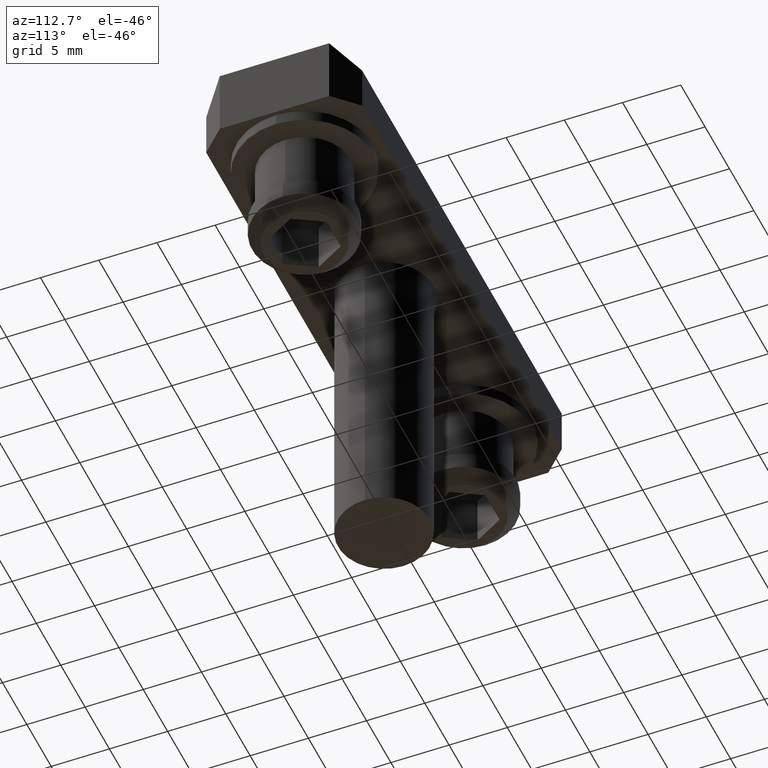
[diagram: clean part render]
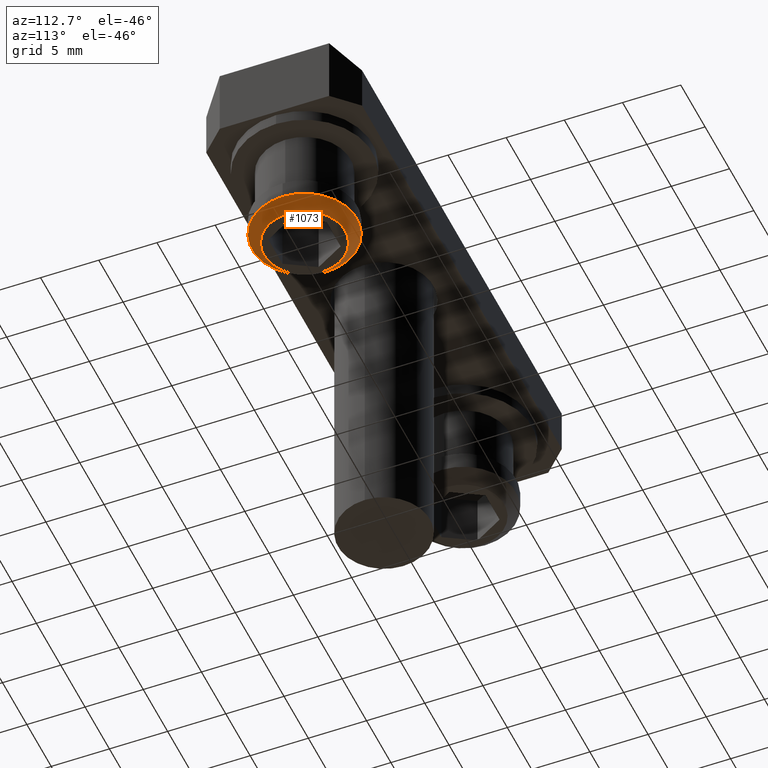
[diagram: same view with one face highlighted and labeled with its STEP entity id]
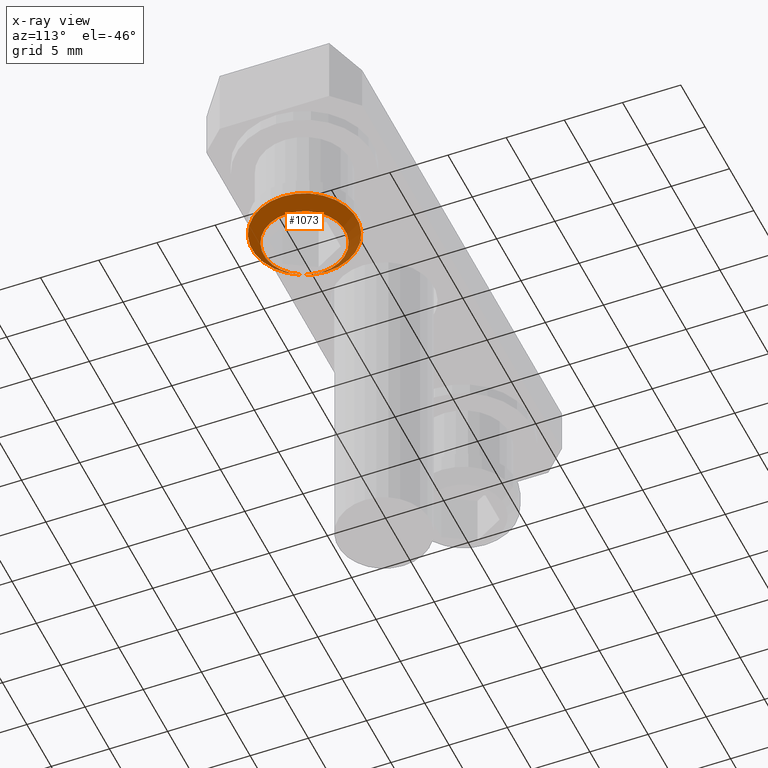
[diagram: x-ray of the same camera — body ghosted, the highlighted face saturated]
A machine part, auxiliary view. The second image highlights one B-rep face of the part: STEP entity #1073.
The next image is the same camera in x-ray: the body ghosted, the highlighted face saturated — about 0% of this face is hidden behind the body in this view.
In plain terms, the highlighted conical surface has half-angle 45 deg.
Its self-contained STEP definition (entity closure, byte-faithful):
#30=CONICAL_SURFACE('',#1157,4.,0.785398163397449);
#87=FACE_OUTER_BOUND('',#147,.T.);
#147=EDGE_LOOP('',(#735,#736,#737,#738,#739));
#231=LINE('',#1618,#328);
#328=VECTOR('',#1302,4.);
#409=CIRCLE('',#1158,4.5);
#410=CIRCLE('',#1159,4.5);
#411=CIRCLE('',#1160,3.5);
#468=VERTEX_POINT('',#1613);
#469=VERTEX_POINT('',#1614);
#470=VERTEX_POINT('',#1617);
#576=EDGE_CURVE('',#468,#469,#409,.T.);
#577=EDGE_CURVE('',#469,#468,#410,.T.);
#578=EDGE_CURVE('',#468,#470,#231,.T.);
#579=EDGE_CURVE('',#470,#470,#411,.T.);
#735=ORIENTED_EDGE('',*,*,#576,.T.);
#736=ORIENTED_EDGE('',*,*,#577,.T.);
#737=ORIENTED_EDGE('',*,*,#578,.T.);
#738=ORIENTED_EDGE('',*,*,#579,.T.);
#739=ORIENTED_EDGE('',*,*,#578,.F.);
#1073=ADVANCED_FACE('',(#87),#30,.T.);
#1157=AXIS2_PLACEMENT_3D('',#1612,#1296,#1297);
#1158=AXIS2_PLACEMENT_3D('',#1615,#1298,#1299);
#1159=AXIS2_PLACEMENT_3D('',#1616,#1300,#1301);
#1160=AXIS2_PLACEMENT_3D('',#1619,#1303,#1304);
#1296=DIRECTION('center_axis',(0.,0.,1.));
#1297=DIRECTION('ref_axis',(1.,0.,0.));
#1298=DIRECTION('center_axis',(0.,0.,-1.));
#1299=DIRECTION('ref_axis',(1.,0.,0.));
#1300=DIRECTION('center_axis',(0.,0.,-1.));
#1301=DIRECTION('ref_axis',(1.,0.,0.));
#1302=DIRECTION('',(0.707106781186548,8.65956056235494E-17,-0.707106781186547));
#1303=DIRECTION('center_axis',(0.,0.,1.));
#1304=DIRECTION('ref_axis',(1.,0.,0.));
#1612=CARTESIAN_POINT('Origin',(24.0944867566475,18.9327112716979,5.25470643910741));
#1613=CARTESIAN_POINT('',(19.5944867566475,18.9327112716979,5.75470643910741));
#1614=CARTESIAN_POINT('',(28.5944867566475,18.9327112716979,5.75470643910741));
#1615=CARTESIAN_POINT('Origin',(24.0944867566475,18.9327112716979,5.75470643910741));
#1616=CARTESIAN_POINT('Origin',(24.0944867566475,18.9327112716979,5.75470643910741));
#1617=CARTESIAN_POINT('',(20.5944867566475,18.9327112716979,4.75470643910741));
#1618=CARTESIAN_POINT('',(20.0944867566475,18.9327112716979,5.25470643910741));
#1619=CARTESIAN_POINT('Origin',(24.0944867566475,18.9327112716979,4.75470643910741));